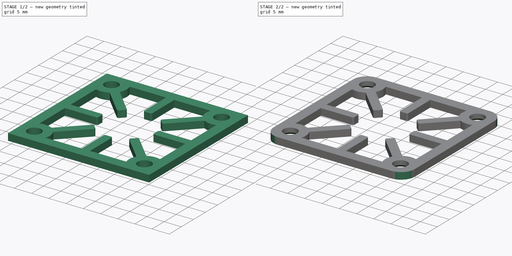
[diagram: build sequence overview — one tinted view per stage of 2, left to right]
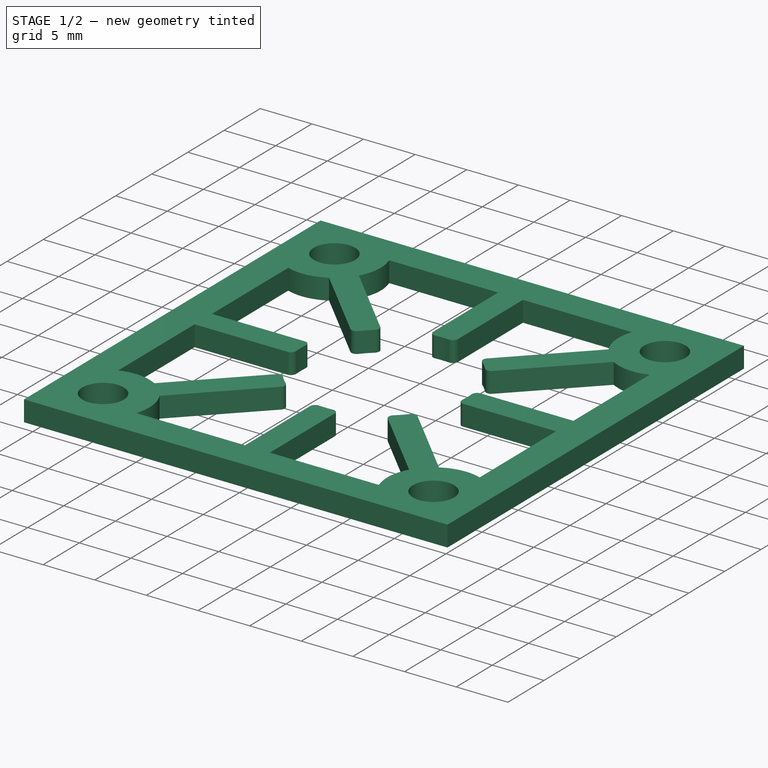
[diagram: stage 1 of 2 — iso view after this stage's code; geometry added in this stage tinted green]
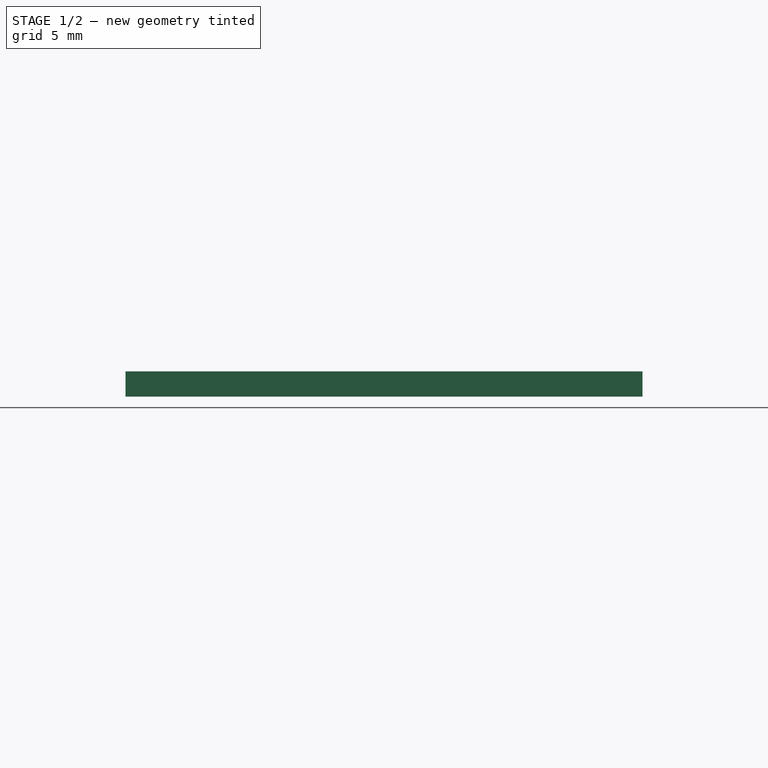
[diagram: stage 1 of 2 — front view after this stage's code; geometry added in this stage tinted green]
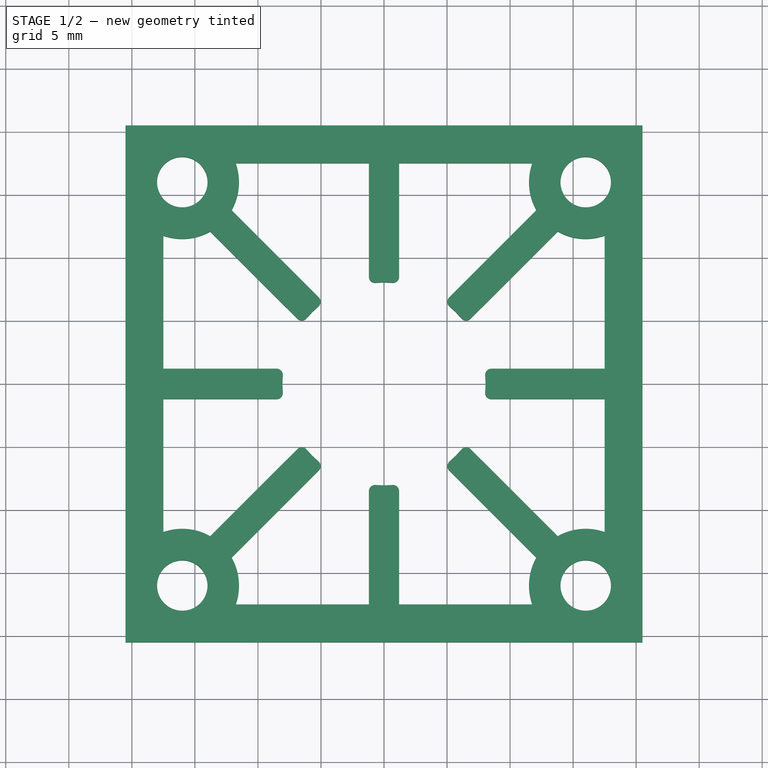
[diagram: stage 1 of 2 — top view after this stage's code; geometry added in this stage tinted green]
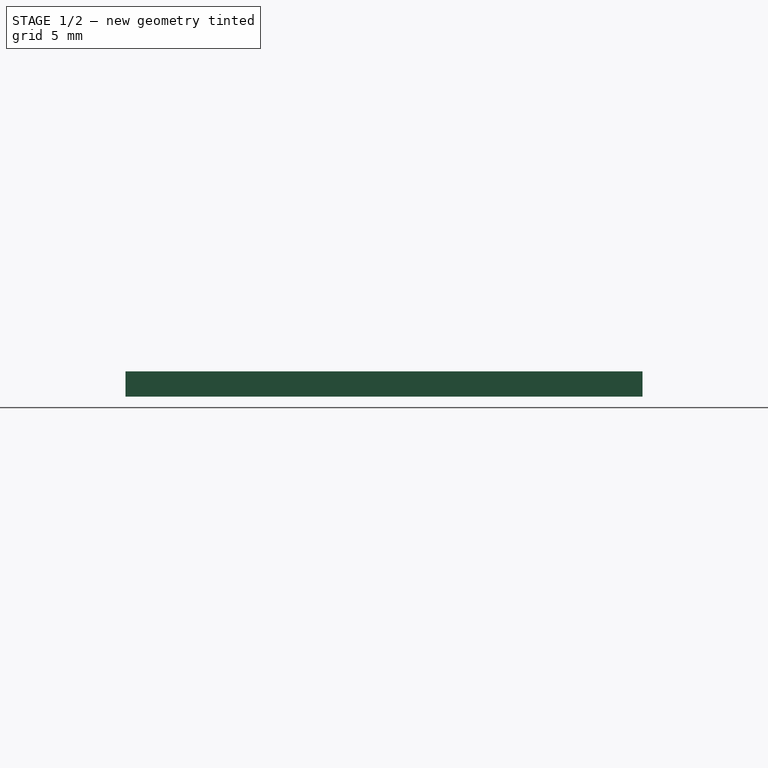
[diagram: stage 1 of 2 — right view after this stage's code; geometry added in this stage tinted green]
FCSTD DOCUMENT  (FreeCAD 0.16R6697 (Git))
Label: Halterung Laserdiode - Adapter
License: All rights reserved
LicenseURL: http://de.wikipedia.org/wiki/Alle_Rechte_vorbehalten
objects: PartDesign::Fillet×2, Sketcher::SketchObject×1, PartDesign::Pad×1, PartDesign::Chamfer×1
note: 6 computed .brp shape members not serialized (recipe doc carries the construction recipe); baked Part::Feature solids carry a one-line shape summary decoded from their .brp

FEATURE [Sketcher::SketchObject] Sketch
  sketch-geometry (56):
    g0: LineSegment StartX=-20.5 StartY=20.5 StartZ=0 EndX=20.5 EndY=20.5 EndZ=0
    g1: LineSegment StartX=20.5 StartY=20.5 StartZ=0 EndX=20.5 EndY=-20.5 EndZ=0
    g2: LineSegment StartX=20.5 StartY=-20.5 StartZ=0 EndX=-20.5 EndY=-20.5 EndZ=0
    g3: LineSegment StartX=-20.5 StartY=-20.5 StartZ=0 EndX=-20.5 EndY=20.5 EndZ=0
    g4: LineSegment [constr] StartX=-16 StartY=16 StartZ=0 EndX=16 EndY=16 EndZ=0
    g5: LineSegment [constr] StartX=16 StartY=16 StartZ=0 EndX=16 EndY=-16 EndZ=0
    g6: LineSegment [constr] StartX=16 StartY=-16 StartZ=0 EndX=-16 EndY=-16 EndZ=0
    g7: LineSegment [constr] StartX=-16 StartY=-16 StartZ=0 EndX=-16 EndY=16 EndZ=0
    g8: Circle CenterX=-16 CenterY=16 CenterZ=0 NormalX=0 NormalY=0 NormalZ=1 Radius=2
    g9: Circle CenterX=16 CenterY=16 CenterZ=0 NormalX=0 NormalY=0 NormalZ=1 Radius=2
    g10: Circle CenterX=-16 CenterY=-16 CenterZ=0 NormalX=0 NormalY=0 NormalZ=1 Radius=2
    g11: Circle CenterX=16 CenterY=-16 CenterZ=0 NormalX=0 NormalY=0 NormalZ=1 Radius=2
    g12: Circle [constr] CenterX=0 CenterY=0 CenterZ=0 NormalX=0 NormalY=0 NormalZ=1 Radius=8.05
    g13: LineSegment StartX=-17.5 StartY=1.2 StartZ=0 EndX=-7.96006 EndY=1.2 EndZ=0
    g14: LineSegment StartX=-17.5 StartY=-1.2 StartZ=0 EndX=-7.96006 EndY=-1.2 EndZ=0
    g15: LineSegment StartX=-1.2 StartY=7.96006 StartZ=0 EndX=-1.2 EndY=17.5 EndZ=0
    g16: LineSegment StartX=1.2 StartY=7.96006 StartZ=0 EndX=1.2 EndY=17.5 EndZ=0
    g17: LineSegment StartX=7.96006 StartY=1.2 StartZ=0 EndX=17.5 EndY=1.2 EndZ=0
    g18: LineSegment StartX=7.96006 StartY=-1.2 StartZ=0 EndX=17.5 EndY=-1.2 EndZ=0
    g19: LineSegment StartX=4.78008 StartY=6.47714 StartZ=0 EndX=12.0847 EndY=13.7818 EndZ=0
    g20: LineSegment StartX=6.47714 StartY=4.78008 StartZ=0 EndX=13.7818 EndY=12.0847 EndZ=0
    g21: LineSegment StartX=6.47714 StartY=-4.78008 StartZ=0 EndX=13.7818 EndY=-12.0847 EndZ=0
    g22: LineSegment StartX=4.78008 StartY=-6.47714 StartZ=0 EndX=12.0847 EndY=-13.7818 EndZ=0
    g23: LineSegment StartX=1.2 StartY=-7.96006 StartZ=0 EndX=1.2 EndY=-17.5 EndZ=0
    g24: LineSegment StartX=-1.2 StartY=-7.96006 StartZ=0 EndX=-1.2 EndY=-17.5 EndZ=0
    g25: LineSegment StartX=-4.78008 StartY=-6.47714 StartZ=0 EndX=-12.0847 EndY=-13.7818 EndZ=0
    g26: LineSegment StartX=-6.47714 StartY=-4.78008 StartZ=0 EndX=-13.7818 EndY=-12.0847 EndZ=0
    g27: LineSegment StartX=-4.78008 StartY=6.47714 StartZ=0 EndX=-12.0847 EndY=13.7818 EndZ=0
    g28: LineSegment StartX=-6.47714 StartY=4.78008 StartZ=0 EndX=-13.7818 EndY=12.0847 EndZ=0
    g29: LineSegment [constr] StartX=-16 StartY=16 StartZ=0 EndX=16 EndY=-16 EndZ=0
    g30: LineSegment [constr] StartX=16 StartY=16 StartZ=0 EndX=-16 EndY=-16 EndZ=0
    g31: ArcOfCircle CenterX=-16 CenterY=-16 CenterZ=0 NormalX=0 NormalY=0 NormalZ=1 Radius=4.5 StartAngle=1.05533 EndAngle=1.91063
    g32: LineSegment StartX=-17.5 StartY=-1.2 StartZ=0 EndX=-17.5 EndY=-11.7574 EndZ=0
    g33: Circle [constr] CenterX=-16 CenterY=-16 CenterZ=0 NormalX=0 NormalY=0 NormalZ=1 Radius=4.5
    g34: ArcOfCircle CenterX=-16 CenterY=-16 CenterZ=0 NormalX=0 NormalY=0 NormalZ=1 Radius=4.5 StartAngle=5.94335 EndAngle=6.79865
    g35: LineSegment StartX=-11.7574 StartY=-17.5 StartZ=0 EndX=-1.2 EndY=-17.5 EndZ=0
    g36: ArcOfCircle CenterX=16 CenterY=-16 CenterZ=0 NormalX=0 NormalY=0 NormalZ=1 Radius=4.5 StartAngle=2.62613 EndAngle=3.48143
    g37: LineSegment StartX=1.2 StartY=-17.5 StartZ=0 EndX=11.7574 EndY=-17.5 EndZ=0
    g38: ArcOfCircle CenterX=16 CenterY=-16 CenterZ=0 NormalX=0 NormalY=0 NormalZ=1 Radius=4.5 StartAngle=1.23096 EndAngle=2.08626
    g39: LineSegment StartX=17.5 StartY=-1.2 StartZ=0 EndX=17.5 EndY=-11.7574 EndZ=0
    g40: LineSegment StartX=17.5 StartY=1.2 StartZ=0 EndX=17.5 EndY=11.7574 EndZ=0
    g41: LineSegment StartX=-17.5 StartY=1.2 StartZ=0 EndX=-17.5 EndY=11.7574 EndZ=0
    g42: LineSegment StartX=-11.7574 StartY=17.5 StartZ=0 EndX=-1.2 EndY=17.5 EndZ=0
    g43: LineSegment StartX=1.2 StartY=17.5 StartZ=0 EndX=11.7574 EndY=17.5 EndZ=0
    g44: ArcOfCircle CenterX=16 CenterY=16 CenterZ=0 NormalX=0 NormalY=0 NormalZ=1 Radius=4.5 StartAngle=4.19692 EndAngle=5.05223
    g45: ArcOfCircle CenterX=16 CenterY=16 CenterZ=0 NormalX=0 NormalY=0 NormalZ=1 Radius=4.5 StartAngle=2.80176 EndAngle=3.65706
    g46: ArcOfCircle CenterX=-16 CenterY=16 CenterZ=0 NormalX=0 NormalY=0 NormalZ=1 Radius=4.5 StartAngle=5.76772 EndAngle=6.62302
    g47: ArcOfCircle CenterX=-16 CenterY=16 CenterZ=0 NormalX=0 NormalY=0 NormalZ=1 Radius=4.5 StartAngle=4.37255 EndAngle=5.22785
    g48: ArcOfCircle CenterX=0 CenterY=0 CenterZ=0 NormalX=0 NormalY=0 NormalZ=1 Radius=8.05 StartAngle=2.99197 EndAngle=3.29122
    g49: ArcOfCircle CenterX=0 CenterY=0 CenterZ=0 NormalX=0 NormalY=0 NormalZ=1 Radius=8.05 StartAngle=2.20657 EndAngle=2.50582
    g50: ArcOfCircle CenterX=0 CenterY=0 CenterZ=0 NormalX=0 NormalY=0 NormalZ=1 Radius=8.05 StartAngle=1.42117 EndAngle=1.72042
    g51: ArcOfCircle CenterX=0 CenterY=0 CenterZ=0 NormalX=0 NormalY=0 NormalZ=1 Radius=8.05 StartAngle=0.635772 EndAngle=0.935024
    g52: ArcOfCircle CenterX=0 CenterY=0 CenterZ=0 NormalX=0 NormalY=0 NormalZ=1 Radius=8.05 StartAngle=6.13356 EndAngle=6.43281
    g53: ArcOfCircle CenterX=0 CenterY=0 CenterZ=0 NormalX=0 NormalY=0 NormalZ=1 Radius=8.05 StartAngle=5.34816 EndAngle=5.64741
    g54: ArcOfCircle CenterX=0 CenterY=0 CenterZ=0 NormalX=0 NormalY=0 NormalZ=1 Radius=8.05 StartAngle=4.56276 EndAngle=4.86201
    g55: ArcOfCircle CenterX=0 CenterY=0 CenterZ=0 NormalX=0 NormalY=0 NormalZ=1 Radius=8.05 StartAngle=3.77736 EndAngle=4.07662
  constraints (163):
    c: Coincident(g0,g1)
    c: Coincident(g1,g2)
    c: Coincident(g2,g3)
    c: Coincident(g3,g0)
    c: Horizontal(g0)
    c: Horizontal(g2)
    c: Vertical(g1)
    c: Vertical(g3)
    c: Equal(g3,g2)
    c: Symmetric(g0,g2,g-1)
    c: Symmetric(g0,g0,g-2)
    c: DistanceX(g2,g2) = 41
    c: Coincident(g4,g5)
    c: Coincident(g5,g6)
    c: Coincident(g6,g7)
    c: Coincident(g7,g4)
    c: Horizontal(g4)
    c: Vertical(g7)
    c: DistanceX(g6,g6) = 32
    c: Equal(g7,g4)
    c: Symmetric(g6,g5,g-2)
    c: Symmetric(g5,g4,g-1)
    c: Coincident(g8,g4)
    c: Coincident(g9,g4)
    c: Coincident(g10,g6)
    c: Coincident(g11,g5)
    c: Radius(g10) = 2
    c: Equal(g10,g8)
    c: Equal(g10,g9)
    c: Equal(g10,g11)
    c: Coincident(g12,g-1)
    c: Radius(g12) = 8.05  'Laserdiode_Housing'
    c: Horizontal(g14)  'Constraint33'
    c: PointOnObject(g13,g12)
    c: PointOnObject(g15,g12)
    c: Vertical(g15)
    c: PointOnObject(g16,g12)
    c: PointOnObject(g17,g12)
    c: Horizontal(g17)
    c: PointOnObject(g18,g12)
    c: Horizontal(g18)
    c: PointOnObject(g19,g12)
    c: PointOnObject(g20,g12)
    c: PointOnObject(g21,g12)
    c: PointOnObject(g22,g12)
    c: Vertical(g23)
    c: PointOnObject(g24,g12)
    c: Vertical(g24)
    c: PointOnObject(g25,g12)
    c: PointOnObject(g26,g12)
    c: PointOnObject(g28,g12)
    c: PointOnObject(g27,g12)
    c: Parallel(g28,g27)
    c: Parallel(g27,g22)
    c: Parallel(g22,g21)
    c: Parallel(g26,g25)
    c: Parallel(g25,g19)
    c: Parallel(g19,g20)
    c: Vertical(g16)
    c: Coincident(g29,g4)
    c: Coincident(g29,g5)
    c: Coincident(g30,g4)
    c: Coincident(g30,g6)
    c: Symmetric(g27,g28,g29)
    c: PointOnObject(g22,g28)
    c: PointOnObject(g21,g27)
    c: Symmetric(g19,g20,g30)
    c: Coincident(g31,g6)
    c: Vertical(g32)
    c: Coincident(g31,g32)
    c: Coincident(g14,g32)
    c: DistanceX(g2,g31) = 3
    c: Symmetric(g26,g25,g30)
    c: Coincident(g31,g26)
    c: Coincident(g33,g6)
    c: Tangent(g33,g2)
    c: PointOnObject(g31,g33)
    c: Coincident(g34,g6)
    c: Coincident(g35,g34)
    c: Horizontal(g35)
    c: Coincident(g24,g35)
    c: Coincident(g25,g34)
    c: Distance(g26,g25) = 2.4
    c: DistanceX(g24,g23) = 2.4
    c: Coincident(g36,g5)
    c: Coincident(g36,g22)
    c: Horizontal(g37)
    c: Coincident(g36,g37)
    c: Coincident(g23,g37)
    c: Equal(g33,g36)
    c: PointOnObject(g23,g12)
    c: PointOnObject(g23,g35)
    c: DistanceY(g2,g34) = 3
    c: Coincident(g38,g5)
    c: Coincident(g21,g38)
    c: Equal(g38,g36)
    c: Coincident(g39,g38)
    c: Vertical(g39)
    c: Vertical(g40)
    c: Vertical(g41)
    c: Coincident(g42,g15)
    c: Horizontal(g42)
    c: Coincident(g43,g16)
    c: Horizontal(g43)
    c: Coincident(g44,g4)
    c: Coincident(g44,g40)
    c: Coincident(g45,g4)
    c: Coincident(g46,g4)
    c: Coincident(g46,g27)
    c: Coincident(g47,g4)
    c: Coincident(g47,g28)
    c: Equal(g47,g46)
    c: Equal(g46,g45)
    c: Equal(g45,g44)
    c: Equal(g44,g38)
    c: Coincident(g45,g19)
    c: Coincident(g20,g44)
    c: Parallel(g20,g30)
    c: PointOnObject(g20,g25)
    c: Coincident(g43,g45)
    c: DistanceY(g43,g0) = 3
    c: PointOnObject(g16,g42)
    c: Coincident(g42,g46)
    c: Parallel(g27,g29)
    c: Coincident(g41,g47)
    c: PointOnObject(g41,g32)
    c: Coincident(g13,g41)
    c: Horizontal(g13)
    c: Coincident(g17,g40)
    c: Coincident(g18,g39)
    c: Symmetric(g24,g23,g-2)
    c: Symmetric(g16,g15,g-2)
    c: PointOnObject(g23,g16)
    c: Distance(g22,g21) = 2.4
    c: PointOnObject(g14,g18)
    c: Symmetric(g13,g14,g-1)
    c: DistanceY(g18,g17) = 2.4
    c: Symmetric(g17,g18,g-1)
    c: DistanceX(g38,g1) = 3
    c: Coincident(g48,g-1)
    c: Coincident(g49,g-1)
    c: Coincident(g50,g-1)
    c: Coincident(g51,g-1)
    c: Coincident(g52,g-1)
    c: Coincident(g53,g-1)
    c: Coincident(g54,g-1)
    c: Coincident(g55,g-1)
    c: Coincident(g14,g48)
    c: Coincident(g13,g48)
    c: Coincident(g28,g49)
    c: Coincident(g27,g49)
    c: Coincident(g15,g50)
    c: Coincident(g16,g50)
    c: Coincident(g19,g51)
    c: Coincident(g20,g51)
    c: Coincident(g17,g52)
    c: Coincident(g18,g52)
    c: Coincident(g21,g53)
    c: Coincident(g22,g53)
    c: Coincident(g23,g54)
    c: Coincident(g24,g54)
    c: Coincident(g25,g55)
    c: Coincident(g26,g55)
FEATURE [PartDesign::Pad] Pad
  Length = 2
  Length2 = 100
  Sketch = -> Sketch
  Type = 0
FEATURE [PartDesign::Fillet] Fillet
  Base = -> Pad [Edge107,Edge122,Edge125,Edge17,Edge20,Edge32,Edge35,Edge47,Edge50,Edge62,Edge65,Edge80,Edge110,Edge95,Edge92,Edge77]
  Radius = 0.5
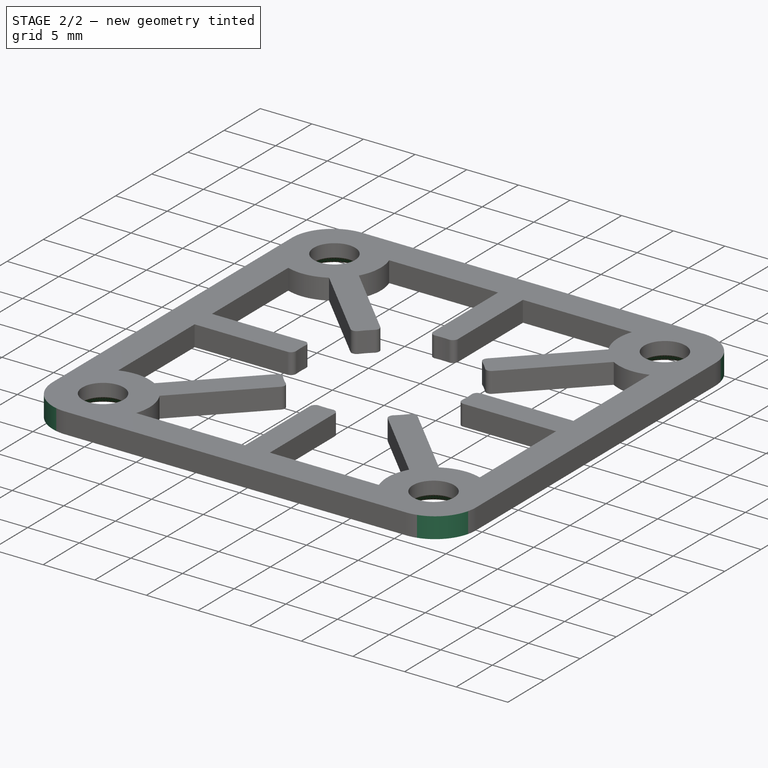
[diagram: stage 2 of 2 — iso view after this stage's code; geometry added in this stage tinted green]
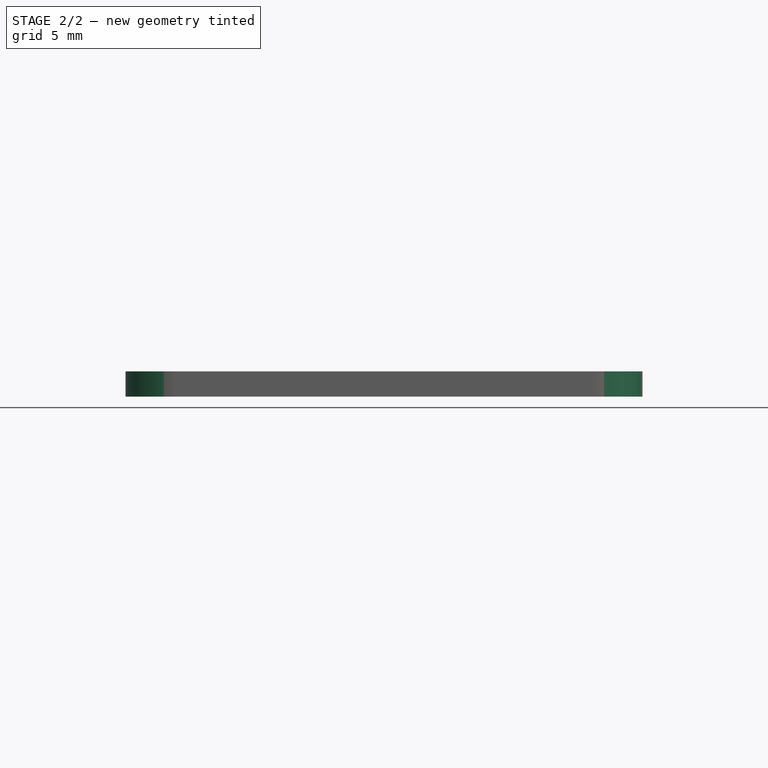
[diagram: stage 2 of 2 — front view after this stage's code; geometry added in this stage tinted green]
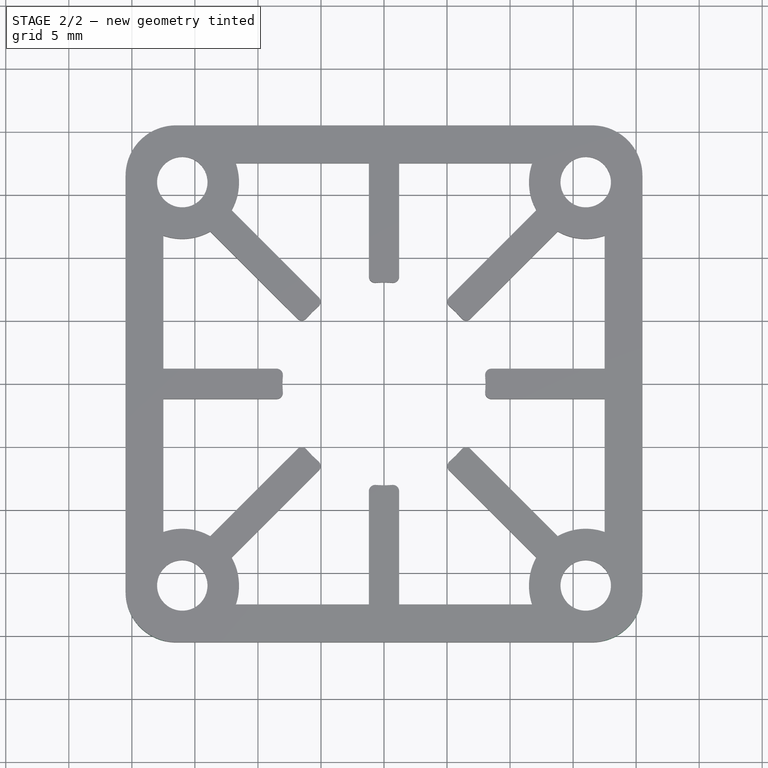
[diagram: stage 2 of 2 — top view after this stage's code; geometry added in this stage tinted green]
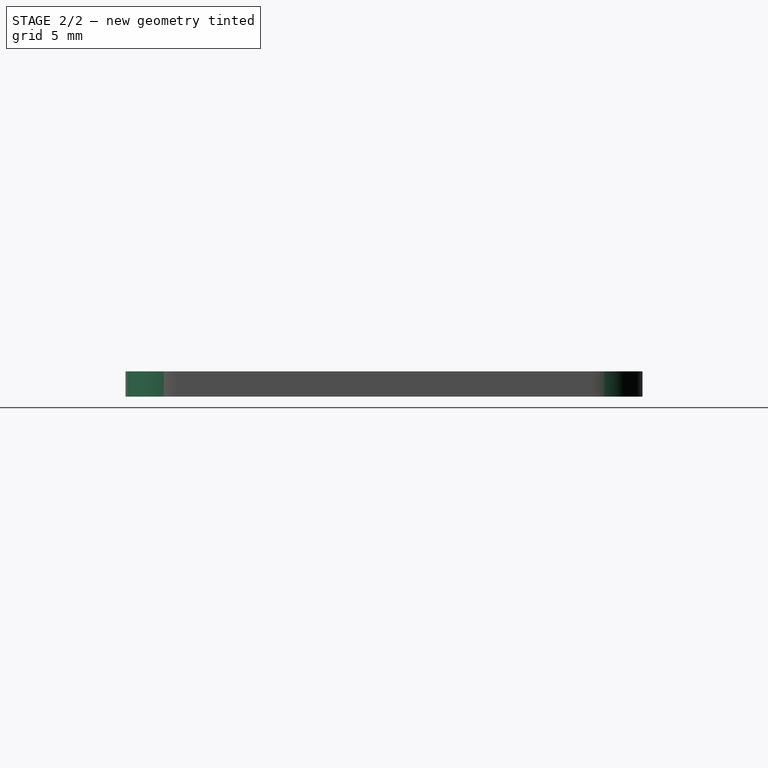
[diagram: stage 2 of 2 — right view after this stage's code; geometry added in this stage tinted green]
FEATURE [PartDesign::Fillet] Fillet001
  Base = -> Fillet [Edge187,Edge188,Edge186,Edge185]
  Radius = 4
FEATURE [PartDesign::Chamfer] Chamfer
  Base = -> Fillet001 [Edge65,Edge66,Edge68,Edge67]
  Size = 0.75
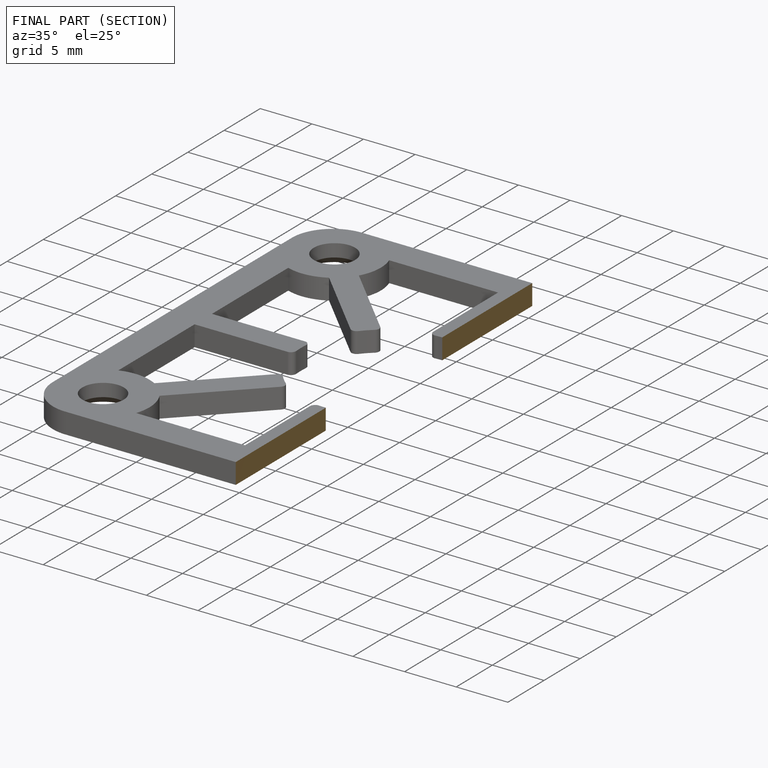
[diagram: finished part — half-section view (interior)]
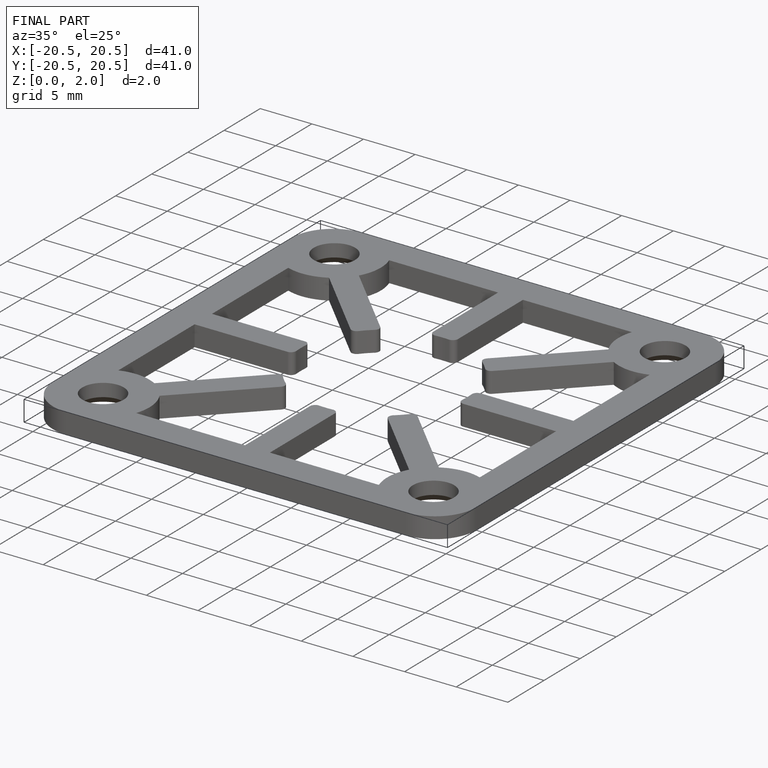
[diagram: finished part — iso view with bounding-box wireframe]
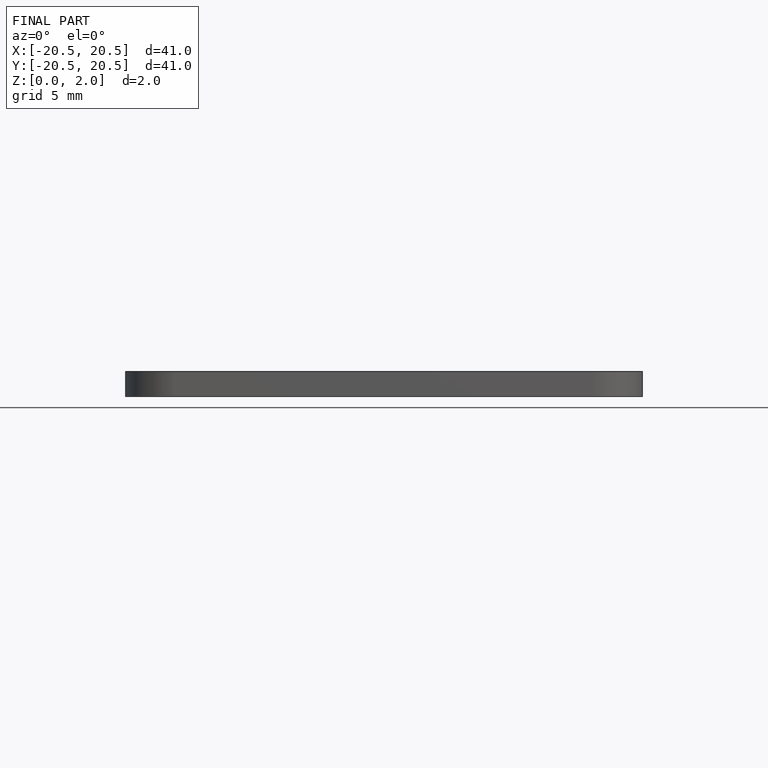
[diagram: finished part — front view with bounding-box wireframe]
